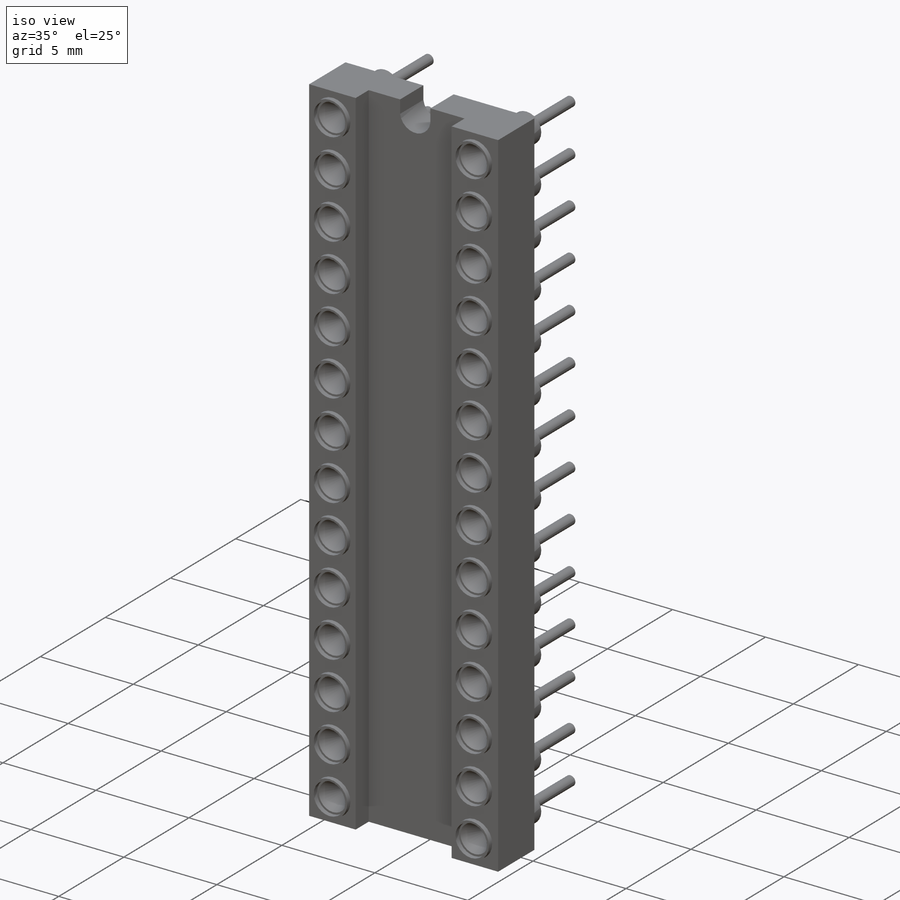
[diagram: iso view]
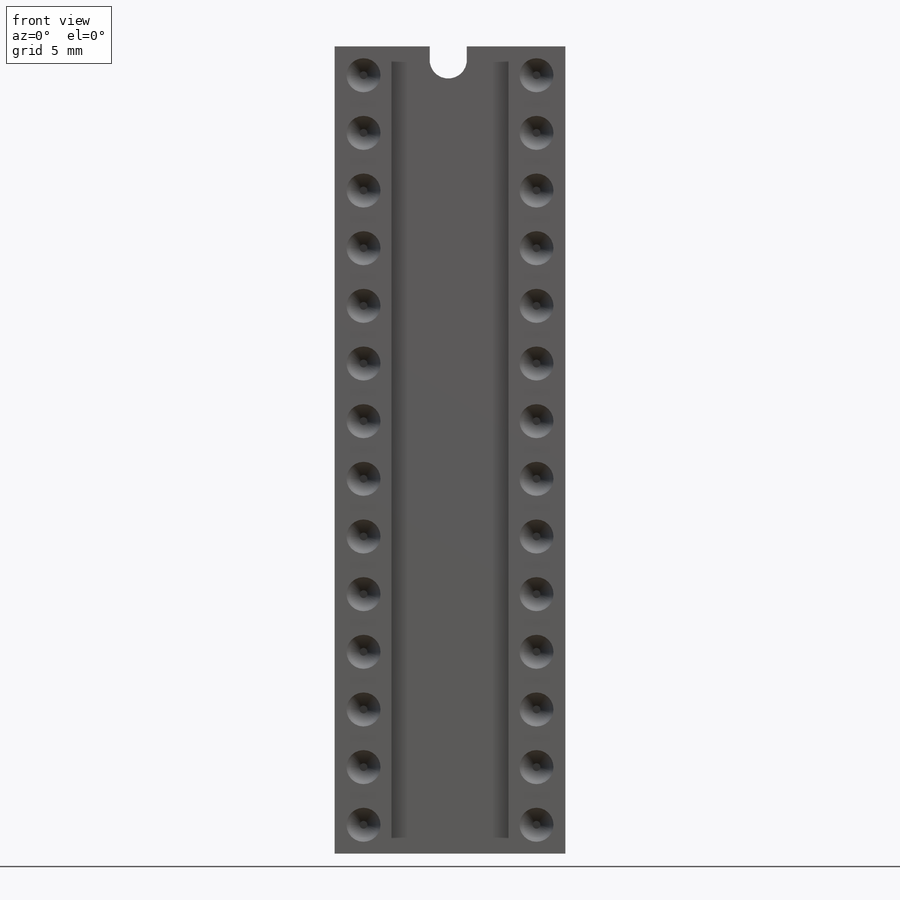
[diagram: front view]
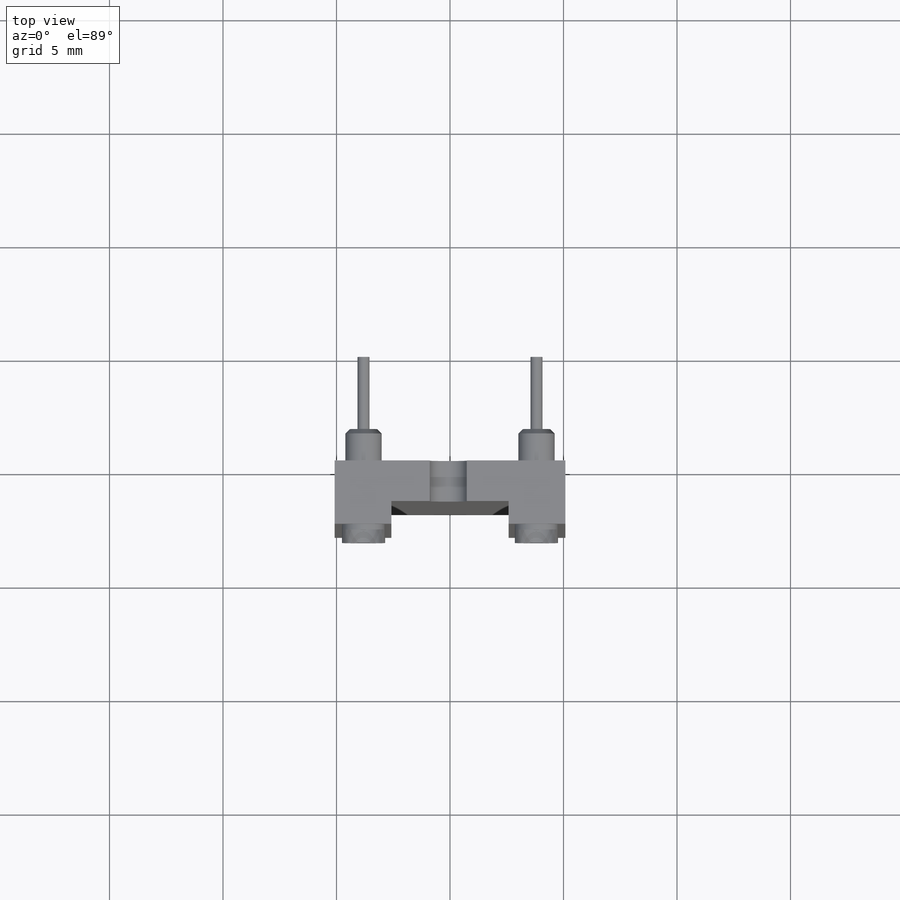
[diagram: top view]
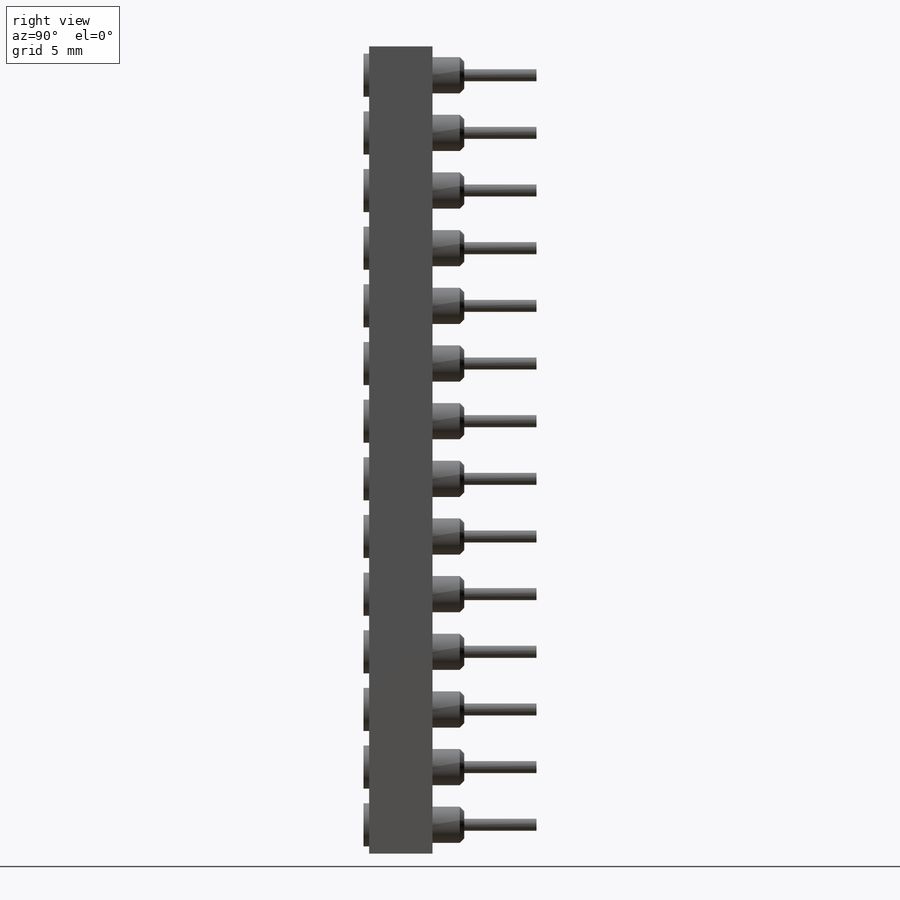
[diagram: right view]
SOLIDWORKS PART (.sldprt)
format: sldprt  version: not decoded by parser v0  size: 494,592 bytes
history: native  units: mm
features: sketch x7, plane x3, extrude x3, cut_extrude x3, pattern_linear x2, material x1, chamfer x1 (+8 scaffold rows collapsed)
feature tree (28):
  scaffold x8  (default folders/planes/origin — collapsed)
  material  "Material <not specified>"
  plane  "Plane1"
  plane  "Plane2"
  plane  "Plane3"
  sketch  "Sketch1"  dims[D1=10.16mm D2=35.56mm D3=5.08mm D4=5.08mm]
  extrude  "Base-Extrude"  Depth=2.79mm
  sketch  "Sketch2"  dims[D1=2.5mm D2=2.5mm D3=1.0mm]
  cut_extrude  "Cut-Extrude1"  [1 undecoded]
  sketch  "Sketch4"  dims[D1=3.81mm D2=3.81mm]
  cut_extrude  "Cut-Extrude4"  Depth=1mm
  sketch  "Sketch5"  dims[c1.D1=0.1mm c2.D1=0.25mm c2.D2=1.0mm c2.D3=30.0deg c2.D4=30.0deg c2.D5=0.1mm c2.D6=10.0mm c2.D7=5.0mm]
  sketch  "Sketch6"  dims[D1=~1.595473mm]
  extrude  "Boss-Extrude1"  Depth=1.4mm
  sketch  "Sketch7"  dims[D1=0.53mm]
  extrude  "Boss-Extrude2"  Depth=3.18mm
  chamfer  "Chamfer1"  Distance=0.2mm Angle=45deg
  pattern_linear  "LPattern1"  Count1=14 Count2=1 Spacing1=2.54mm Spacing2=50mm
  pattern_linear  "LPattern2"  Count1=2 Count2=1 Spacing1=7.62mm Spacing2=50mm
  sketch  "Sketch8"
  cut_extrude  "Cut-Extrude5"  Depth=1.79mm
decode coverage: 14 of 16 modeling features carry decoded parameters
note: ~ marks probable driven/reference dimensions
note: 1 parameter value undecoded
note: suppression state not decoded; provenance and decode notes live in map.json
